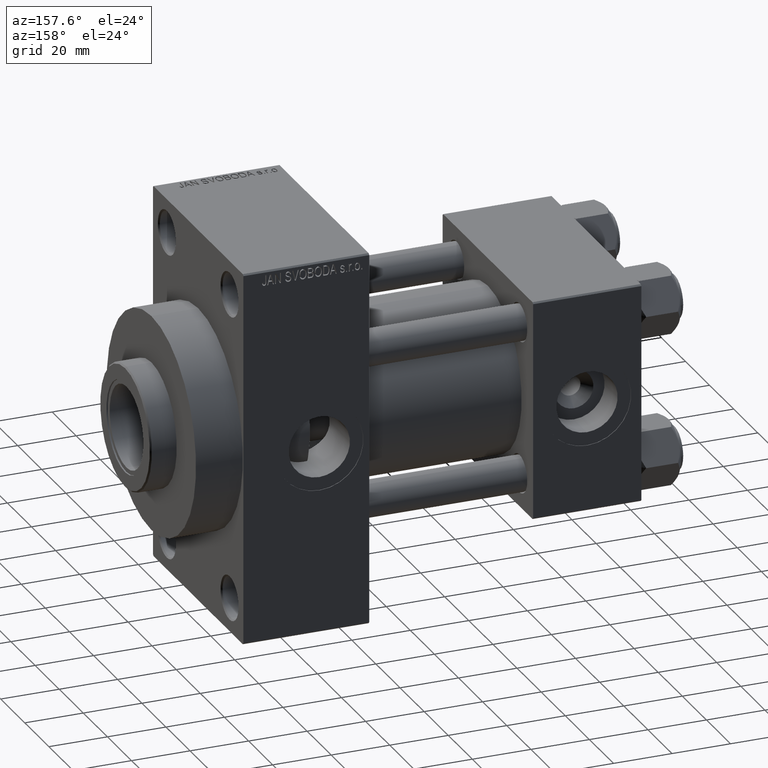
[diagram: clean part render]
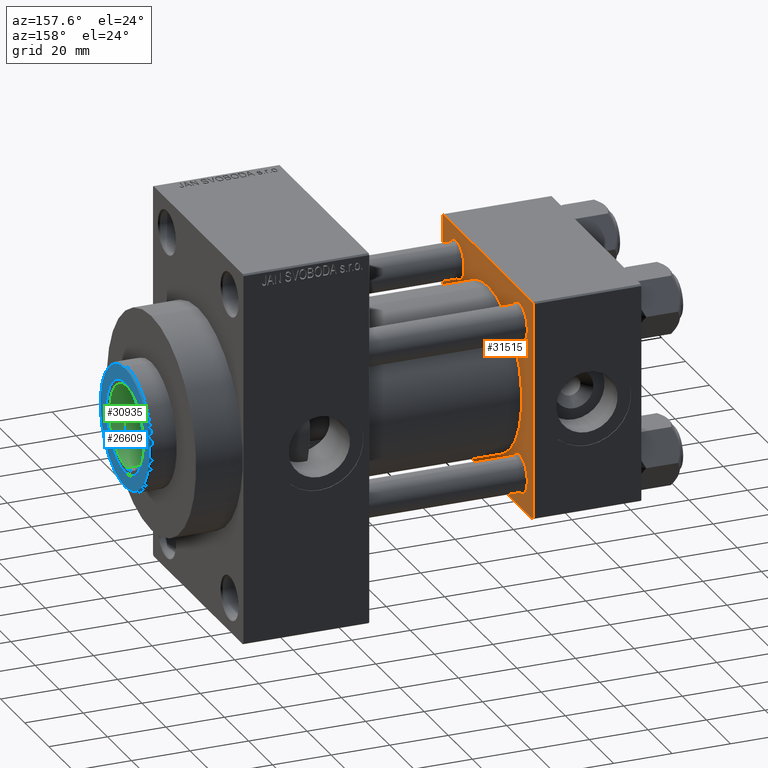
[diagram: same view with three faces highlighted in distinct colors, each labeled with its STEP entity id]
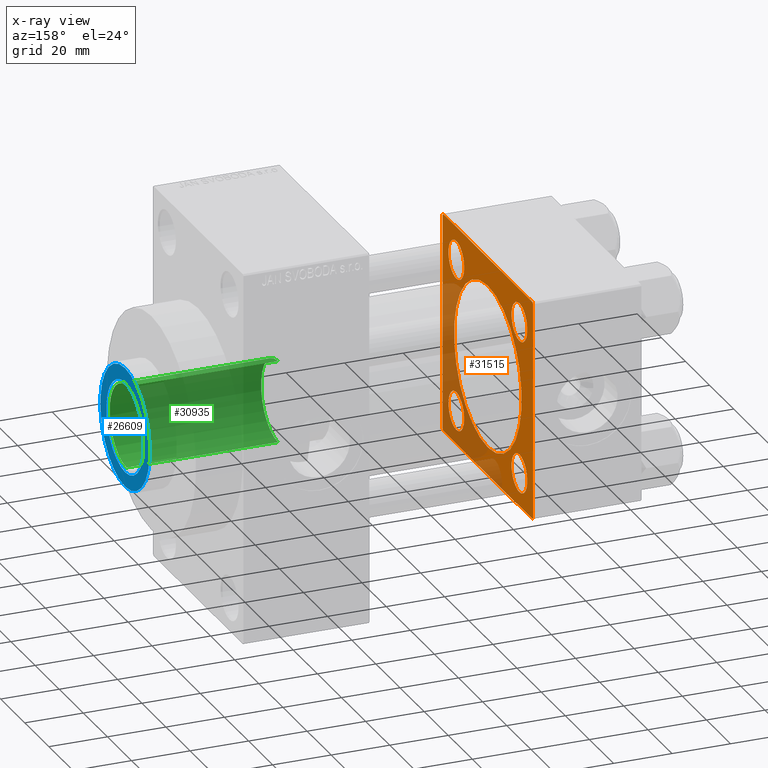
[diagram: x-ray of the same camera — body ghosted, the three highlighted faces saturated]
A machine part, auxiliary view with three faces highlighted in distinct colors.
The next image is the same camera in x-ray (body ghosted, the three faces saturated) — at least one of them is partly hidden behind the body in this view.
Their STEP definitions:

[orange] entity #31515 — the highlighted planar face has unit normal (-1, 0, 0).
#45 = VECTOR ( 'NONE', #42950, 1000.000000000000000 ) ;
#729 = CARTESIAN_POINT ( 'NONE',  ( 37.00000000000000000, 37.49999999999999289, 37.00000000000000000 ) ) ;
#925 = CARTESIAN_POINT ( 'NONE',  ( 37.00000000000000000, 36.99999999999999289, 37.50000000000000000 ) ) ;
#976 = VERTEX_POINT ( 'NONE', #10251 ) ;
#2039 = EDGE_CURVE ( 'NONE', #12675, #46666, #4774, .T. ) ;
#2148 = CARTESIAN_POINT ( 'NONE',  ( 37.00000000000000000, 26.14999999999999858, -26.15000000000000213 ) ) ;
#2221 = CARTESIAN_POINT ( 'NONE',  ( 37.00000000000000000, -26.14999999999999147, 19.65000000000000213 ) ) ;
#2370 = CIRCLE ( 'NONE', #45830, 6.500000000000002665 ) ;
#2469 = CARTESIAN_POINT ( 'NONE',  ( 37.00000000000000000, 8.269258236473784371E-16, -28.00000000000000000 ) ) ;
#2521 = EDGE_LOOP ( 'NONE', ( #40454, #30263 ) ) ;
#2956 = VERTEX_POINT ( 'NONE', #2221 ) ;
#3378 = CARTESIAN_POINT ( 'NONE',  ( 37.00000000000000000, -37.50000000000000000, -37.00000000000003553 ) ) ;
#3574 = CIRCLE ( 'NONE', #40153, 28.00000000000000000 ) ;
#4531 = ORIENTED_EDGE ( 'NONE', *, *, #44248, .T. ) ;
#4774 = LINE ( 'NONE', #15972, #14500 ) ;
#5043 = CIRCLE ( 'NONE', #11115, 28.00000000000000000 ) ;
#5260 = DIRECTION ( 'NONE',  ( -1.000000000000000000, 0.000000000000000000, -0.000000000000000000 ) ) ;
#5371 = CARTESIAN_POINT ( 'NONE',  ( 37.00000000000000000, -37.50000000000000711, 36.99999999999999289 ) ) ;
#5607 = CIRCLE ( 'NONE', #20075, 6.500000000000002665 ) ;
#6056 = LINE ( 'NONE', #8942, #11577 ) ;
#6071 = CARTESIAN_POINT ( 'NONE',  ( 37.00000000000000000, -26.14999999999999147, -19.65000000000000924 ) ) ;
#6081 = CARTESIAN_POINT ( 'NONE',  ( 37.00000000000000000, 26.14999999999999858, 26.15000000000000213 ) ) ;
#6656 = CARTESIAN_POINT ( 'NONE',  ( 37.00000000000000000, 37.49999999999999289, -37.50000000000000000 ) ) ;
#6968 = VERTEX_POINT ( 'NONE', #729 ) ;
#7112 = PLANE ( 'NONE',  #22255 ) ;
#7352 = FACE_BOUND ( 'NONE', #35170, .T. ) ;
#7362 = DIRECTION ( 'NONE',  ( 0.000000000000000000, 0.000000000000000000, 1.000000000000000000 ) ) ;
#7459 = CARTESIAN_POINT ( 'NONE',  ( 37.00000000000000000, -2.602085213965210642E-15, 28.00000000000000000 ) ) ;
#7658 = ORIENTED_EDGE ( 'NONE', *, *, #2039, .T. ) ;
#7823 = VERTEX_POINT ( 'NONE', #6071 ) ;
#7880 = DIRECTION ( 'NONE',  ( 0.000000000000000000, 0.000000000000000000, 1.000000000000000000 ) ) ;
#8034 = VECTOR ( 'NONE', #45258, 1000.000000000000114 ) ;
#8154 = CARTESIAN_POINT ( 'NONE',  ( 37.00000000000000000, 26.14999999999999858, 26.15000000000000213 ) ) ;
#8580 = CARTESIAN_POINT ( 'NONE',  ( 37.00000000000000000, 36.99999999999997868, -37.50000000000000000 ) ) ;
#8772 = ORIENTED_EDGE ( 'NONE', *, *, #34985, .T. ) ;
#8942 = CARTESIAN_POINT ( 'NONE',  ( 37.00000000000000000, 36.99999999999999289, 37.50000000000000000 ) ) ;
#8951 = DIRECTION ( 'NONE',  ( 0.000000000000000000, 0.000000000000000000, -1.000000000000000000 ) ) ;
#9254 = EDGE_CURVE ( 'NONE', #6968, #34952, #6056, .T. ) ;
#9294 = DIRECTION ( 'NONE',  ( -1.000000000000000000, 0.000000000000000000, -0.000000000000000000 ) ) ;
#9697 = CARTESIAN_POINT ( 'NONE',  ( 37.00000000000000000, -26.14999999999999147, 26.15000000000000924 ) ) ;
#9739 = EDGE_CURVE ( 'NONE', #2956, #15340, #20738, .T. ) ;
#9801 = DIRECTION ( 'NONE',  ( -1.000000000000000000, 0.000000000000000000, -0.000000000000000000 ) ) ;
#10210 = DIRECTION ( 'NONE',  ( 0.000000000000000000, -1.000000000000000000, -9.251858538542971581E-17 ) ) ;
#10251 = CARTESIAN_POINT ( 'NONE',  ( 37.00000000000000000, 37.49999999999999289, -36.99999999999998579 ) ) ;
#10515 = ORIENTED_EDGE ( 'NONE', *, *, #40465, .T. ) ;
#10680 = FACE_BOUND ( 'NONE', #44882, .T. ) ;
#11115 = AXIS2_PLACEMENT_3D ( 'NONE', #35744, #24285, #31456 ) ;
#11172 = FACE_BOUND ( 'NONE', #2521, .T. ) ;
#11577 = VECTOR ( 'NONE', #20603, 1000.000000000000114 ) ;
#12058 = CARTESIAN_POINT ( 'NONE',  ( 37.00000000000000000, -26.14999999999999147, 32.65000000000001990 ) ) ;
#12610 = CARTESIAN_POINT ( 'NONE',  ( 37.00000000000000000, -26.14999999999999147, -32.65000000000001279 ) ) ;
#12675 = VERTEX_POINT ( 'NONE', #26930 ) ;
#13733 = DIRECTION ( 'NONE',  ( 0.000000000000000000, 0.000000000000000000, 1.000000000000000000 ) ) ;
#13757 = VECTOR ( 'NONE', #27688, 1000.000000000000000 ) ;
#14500 = VECTOR ( 'NONE', #44418, 1000.000000000000000 ) ;
#14794 = EDGE_CURVE ( 'NONE', #20218, #976, #23403, .T. ) ;
#14880 = AXIS2_PLACEMENT_3D ( 'NONE', #9697, #42885, #13733 ) ;
#14910 = EDGE_CURVE ( 'NONE', #34952, #38601, #17146, .T. ) ;
#15340 = VERTEX_POINT ( 'NONE', #12058 ) ;
#15972 = CARTESIAN_POINT ( 'NONE',  ( 37.00000000000000000, -37.50000000000000711, 37.49999999999999289 ) ) ;
#16124 = VECTOR ( 'NONE', #8951, 1000.000000000000000 ) ;
#17146 = LINE ( 'NONE', #20960, #35404 ) ;
#17614 = DIRECTION ( 'NONE',  ( -1.000000000000000000, 0.000000000000000000, -0.000000000000000000 ) ) ;
#17795 = ORIENTED_EDGE ( 'NONE', *, *, #30295, .F. ) ;
#18018 = CARTESIAN_POINT ( 'NONE',  ( 37.00000000000000000, 26.14999999999999858, 32.65000000000001279 ) ) ;
#18570 = DIRECTION ( 'NONE',  ( -0.000000000000000000, 0.000000000000000000, 1.000000000000000000 ) ) ;
#18580 = DIRECTION ( 'NONE',  ( -1.000000000000000000, 0.000000000000000000, -0.000000000000000000 ) ) ;
#18712 = CIRCLE ( 'NONE', #28626, 6.500000000000002665 ) ;
#18951 = EDGE_CURVE ( 'NONE', #33760, #38652, #43784, .T. ) ;
#19252 = EDGE_LOOP ( 'NONE', ( #23692, #21361, #17795, #45551, #36699, #27557, #7658, #38956 ) ) ;
#20075 = AXIS2_PLACEMENT_3D ( 'NONE', #2148, #9294, #34162 ) ;
#20218 = VERTEX_POINT ( 'NONE', #8580 ) ;
#20603 = DIRECTION ( 'NONE',  ( 0.000000000000000000, -0.7071067811865474617, 0.7071067811865474617 ) ) ;
#20643 = ORIENTED_EDGE ( 'NONE', *, *, #26636, .T. ) ;
#20738 = CIRCLE ( 'NONE', #45912, 6.500000000000008882 ) ;
#20960 = CARTESIAN_POINT ( 'NONE',  ( 37.00000000000000000, 37.49999999999999289, 37.50000000000000000 ) ) ;
#21036 = EDGE_CURVE ( 'NONE', #43430, #31584, #27873, .T. ) ;
#21361 = ORIENTED_EDGE ( 'NONE', *, *, #14794, .T. ) ;
#21597 = AXIS2_PLACEMENT_3D ( 'NONE', #40082, #18580, #7362 ) ;
#21648 = VECTOR ( 'NONE', #41074, 1000.000000000000114 ) ;
#21920 = ORIENTED_EDGE ( 'NONE', *, *, #9739, .T. ) ;
#22255 = AXIS2_PLACEMENT_3D ( 'NONE', #29321, #17614, #18570 ) ;
#22719 = DIRECTION ( 'NONE',  ( 0.000000000000000000, 0.000000000000000000, 1.000000000000000000 ) ) ;
#22811 = VERTEX_POINT ( 'NONE', #12610 ) ;
#23403 = LINE ( 'NONE', #44663, #21648 ) ;
#23677 = DIRECTION ( 'NONE',  ( 0.000000000000000000, 0.000000000000000000, 1.000000000000000000 ) ) ;
#23692 = ORIENTED_EDGE ( 'NONE', *, *, #24986, .F. ) ;
#23929 = EDGE_CURVE ( 'NONE', #34507, #33594, #5043, .T. ) ;
#24285 = DIRECTION ( 'NONE',  ( 1.000000000000000000, -0.000000000000000000, 0.000000000000000000 ) ) ;
#24559 = LINE ( 'NONE', #6656, #45 ) ;
#24717 = ORIENTED_EDGE ( 'NONE', *, *, #23929, .F. ) ;
#24930 = EDGE_CURVE ( 'NONE', #46666, #39631, #46531, .T. ) ;
#24986 = EDGE_CURVE ( 'NONE', #20218, #39631, #24559, .T. ) ;
#25023 = CARTESIAN_POINT ( 'NONE',  ( 37.00000000000000000, 26.14999999999999858, -19.65000000000000213 ) ) ;
#25262 = FACE_OUTER_BOUND ( 'NONE', #19252, .T. ) ;
#25817 = CARTESIAN_POINT ( 'NONE',  ( 37.00000000000000000, -37.00000000000002132, -37.50000000000000711 ) ) ;
#26636 = EDGE_CURVE ( 'NONE', #22811, #7823, #2370, .T. ) ;
#26930 = CARTESIAN_POINT ( 'NONE',  ( 37.00000000000000000, -37.50000000000000711, 36.99999999999999289 ) ) ;
#27116 = CIRCLE ( 'NONE', #14880, 6.500000000000008882 ) ;
#27557 = ORIENTED_EDGE ( 'NONE', *, *, #44580, .T. ) ;
#27688 = DIRECTION ( 'NONE',  ( 0.000000000000000000, 0.7071067811865524577, -0.7071067811865426878 ) ) ;
#27873 = CIRCLE ( 'NONE', #46148, 6.500000000000002665 ) ;
#28191 = DIRECTION ( 'NONE',  ( 0.000000000000000000, 0.000000000000000000, 1.000000000000000000 ) ) ;
#28626 = AXIS2_PLACEMENT_3D ( 'NONE', #8154, #29168, #22719 ) ;
#29168 = DIRECTION ( 'NONE',  ( -1.000000000000000000, 0.000000000000000000, -0.000000000000000000 ) ) ;
#29230 = ORIENTED_EDGE ( 'NONE', *, *, #18951, .T. ) ;
#29302 = ORIENTED_EDGE ( 'NONE', *, *, #47199, .F. ) ;
#29321 = CARTESIAN_POINT ( 'NONE',  ( 37.00000000000000000, 0.000000000000000000, 0.000000000000000000 ) ) ;
#29805 = LINE ( 'NONE', #40794, #16124 ) ;
#30263 = ORIENTED_EDGE ( 'NONE', *, *, #34770, .T. ) ;
#30295 = EDGE_CURVE ( 'NONE', #6968, #976, #29805, .T. ) ;
#30854 = DIRECTION ( 'NONE',  ( -1.000000000000000000, 0.000000000000000000, -0.000000000000000000 ) ) ;
#31456 = DIRECTION ( 'NONE',  ( 0.000000000000000000, 0.000000000000000000, 1.000000000000000000 ) ) ;
#31515 = ADVANCED_FACE ( 'NONE', ( #36254, #11172, #40071, #7352, #10680, #25262 ), #7112, .F. ) ;
#31545 = DIRECTION ( 'NONE',  ( 0.000000000000000000, 0.000000000000000000, 1.000000000000000000 ) ) ;
#31584 = VERTEX_POINT ( 'NONE', #25023 ) ;
#33594 = VERTEX_POINT ( 'NONE', #2469 ) ;
#33760 = VERTEX_POINT ( 'NONE', #35419 ) ;
#34162 = DIRECTION ( 'NONE',  ( 0.000000000000000000, 0.000000000000000000, 1.000000000000000000 ) ) ;
#34507 = VERTEX_POINT ( 'NONE', #7459 ) ;
#34770 = EDGE_CURVE ( 'NONE', #31584, #43430, #5607, .T. ) ;
#34952 = VERTEX_POINT ( 'NONE', #925 ) ;
#34985 = EDGE_CURVE ( 'NONE', #7823, #22811, #36094, .T. ) ;
#35136 = CARTESIAN_POINT ( 'NONE',  ( 37.00000000000000000, -2.602085213965210642E-15, 0.000000000000000000 ) ) ;
#35170 = EDGE_LOOP ( 'NONE', ( #29230, #10515 ) ) ;
#35404 = VECTOR ( 'NONE', #10210, 1000.000000000000000 ) ;
#35419 = CARTESIAN_POINT ( 'NONE',  ( 37.00000000000000000, 26.14999999999999858, 19.64999999999999858 ) ) ;
#35680 = DIRECTION ( 'NONE',  ( 0.000000000000000000, 0.000000000000000000, 1.000000000000000000 ) ) ;
#35744 = CARTESIAN_POINT ( 'NONE',  ( 37.00000000000000000, -2.602085213965210642E-15, 0.000000000000000000 ) ) ;
#36094 = CIRCLE ( 'NONE', #21597, 6.500000000000002665 ) ;
#36182 = AXIS2_PLACEMENT_3D ( 'NONE', #6081, #46200, #35680 ) ;
#36254 = FACE_BOUND ( 'NONE', #42042, .T. ) ;
#36699 = ORIENTED_EDGE ( 'NONE', *, *, #14910, .T. ) ;
#38262 = DIRECTION ( 'NONE',  ( 1.000000000000000000, -0.000000000000000000, 0.000000000000000000 ) ) ;
#38601 = VERTEX_POINT ( 'NONE', #39049 ) ;
#38652 = VERTEX_POINT ( 'NONE', #18018 ) ;
#38944 = CARTESIAN_POINT ( 'NONE',  ( 37.00000000000000000, -26.14999999999999147, 26.15000000000000924 ) ) ;
#38956 = ORIENTED_EDGE ( 'NONE', *, *, #24930, .T. ) ;
#39049 = CARTESIAN_POINT ( 'NONE',  ( 37.00000000000000000, -37.00000000000000711, 37.49999999999999289 ) ) ;
#39604 = CARTESIAN_POINT ( 'NONE',  ( 37.00000000000000000, -37.00000000000002132, -37.50000000000000711 ) ) ;
#39631 = VERTEX_POINT ( 'NONE', #25817 ) ;
#40071 = FACE_BOUND ( 'NONE', #46653, .T. ) ;
#40082 = CARTESIAN_POINT ( 'NONE',  ( 37.00000000000000000, -26.14999999999999147, -26.15000000000000924 ) ) ;
#40153 = AXIS2_PLACEMENT_3D ( 'NONE', #35136, #38262, #31545 ) ;
#40454 = ORIENTED_EDGE ( 'NONE', *, *, #21036, .T. ) ;
#40465 = EDGE_CURVE ( 'NONE', #38652, #33760, #18712, .T. ) ;
#40794 = CARTESIAN_POINT ( 'NONE',  ( 37.00000000000000000, 37.49999999999999289, 37.50000000000000000 ) ) ;
#41074 = DIRECTION ( 'NONE',  ( -0.000000000000000000, 0.7071067811865474617, 0.7071067811865474617 ) ) ;
#42042 = EDGE_LOOP ( 'NONE', ( #20643, #8772 ) ) ;
#42885 = DIRECTION ( 'NONE',  ( -1.000000000000000000, 0.000000000000000000, -0.000000000000000000 ) ) ;
#42950 = DIRECTION ( 'NONE',  ( 0.000000000000000000, -1.000000000000000000, -9.251858538542972814E-17 ) ) ;
#43430 = VERTEX_POINT ( 'NONE', #44988 ) ;
#43784 = CIRCLE ( 'NONE', #36182, 6.500000000000002665 ) ;
#44248 = EDGE_CURVE ( 'NONE', #15340, #2956, #27116, .T. ) ;
#44418 = DIRECTION ( 'NONE',  ( 0.000000000000000000, 9.251858538542971581E-17, -1.000000000000000000 ) ) ;
#44580 = EDGE_CURVE ( 'NONE', #38601, #12675, #44786, .T. ) ;
#44663 = CARTESIAN_POINT ( 'NONE',  ( 37.00000000000000000, 37.49999999999999289, -36.99999999999998579 ) ) ;
#44786 = LINE ( 'NONE', #5371, #8034 ) ;
#44882 = EDGE_LOOP ( 'NONE', ( #24717, #29302 ) ) ;
#44906 = CARTESIAN_POINT ( 'NONE',  ( 37.00000000000000000, -26.14999999999999147, -26.15000000000000924 ) ) ;
#44988 = CARTESIAN_POINT ( 'NONE',  ( 37.00000000000000000, 26.14999999999999858, -32.65000000000000568 ) ) ;
#45258 = DIRECTION ( 'NONE',  ( -0.000000000000000000, -0.7071067811865474617, -0.7071067811865474617 ) ) ;
#45551 = ORIENTED_EDGE ( 'NONE', *, *, #9254, .T. ) ;
#45830 = AXIS2_PLACEMENT_3D ( 'NONE', #44906, #5260, #7880 ) ;
#45886 = CARTESIAN_POINT ( 'NONE',  ( 37.00000000000000000, 26.14999999999999858, -26.15000000000000213 ) ) ;
#45912 = AXIS2_PLACEMENT_3D ( 'NONE', #38944, #9801, #28191 ) ;
#46148 = AXIS2_PLACEMENT_3D ( 'NONE', #45886, #30854, #23677 ) ;
#46200 = DIRECTION ( 'NONE',  ( -1.000000000000000000, 0.000000000000000000, -0.000000000000000000 ) ) ;
#46531 = LINE ( 'NONE', #39604, #13757 ) ;
#46653 = EDGE_LOOP ( 'NONE', ( #21920, #4531 ) ) ;
#46666 = VERTEX_POINT ( 'NONE', #3378 ) ;
#47199 = EDGE_CURVE ( 'NONE', #33594, #34507, #3574, .T. ) ;

[blue] entity #26609 — the highlighted planar face has unit normal (1, -0, -0).
#822 = CIRCLE ( 'NONE', #27506, 15.50000000000000000 ) ;
#1216 = DIRECTION ( 'NONE',  ( 0.000000000000000000, 0.000000000000000000, 1.000000000000000000 ) ) ;
#1232 = CIRCLE ( 'NONE', #2711, 20.50000000000000355 ) ;
#2150 = EDGE_CURVE ( 'NONE', #29720, #19954, #16049, .T. ) ;
#2688 = EDGE_CURVE ( 'NONE', #19954, #29720, #822, .T. ) ;
#2711 = AXIS2_PLACEMENT_3D ( 'NONE', #40665, #7940, #36846 ) ;
#5782 = CARTESIAN_POINT ( 'NONE',  ( 15.50000000000000000, 0.000000000000000000, 52.25999999999999801 ) ) ;
#7940 = DIRECTION ( 'NONE',  ( 0.000000000000000000, 0.000000000000000000, 1.000000000000000000 ) ) ;
#9049 = DIRECTION ( 'NONE',  ( 0.000000000000000000, 0.000000000000000000, 1.000000000000000000 ) ) ;
#9281 = DIRECTION ( 'NONE',  ( 1.000000000000000000, 0.000000000000000000, 0.000000000000000000 ) ) ;
#11392 = EDGE_LOOP ( 'NONE', ( #38376, #25819 ) ) ;
#11530 = AXIS2_PLACEMENT_3D ( 'NONE', #37027, #1216, #30802 ) ;
#12315 = DIRECTION ( 'NONE',  ( 1.000000000000000000, 0.000000000000000000, 0.000000000000000000 ) ) ;
#16015 = CARTESIAN_POINT ( 'NONE',  ( 20.50000000000000355, 2.541142108230758269E-15, 52.25999999999999801 ) ) ;
#16049 = CIRCLE ( 'NONE', #46551, 15.50000000000000000 ) ;
#16938 = EDGE_CURVE ( 'NONE', #36223, #40588, #32277, .T. ) ;
#17374 = CARTESIAN_POINT ( 'NONE',  ( 0.000000000000000000, 0.000000000000000000, 52.25999999999999801 ) ) ;
#19954 = VERTEX_POINT ( 'NONE', #41658 ) ;
#21820 = EDGE_CURVE ( 'NONE', #40588, #36223, #1232, .T. ) ;
#25819 = ORIENTED_EDGE ( 'NONE', *, *, #2688, .F. ) ;
#26609 = ADVANCED_FACE ( 'NONE', ( #37264, #37985 ), #29858, .T. ) ;
#27506 = AXIS2_PLACEMENT_3D ( 'NONE', #30470, #45044, #12315 ) ;
#28946 = ORIENTED_EDGE ( 'NONE', *, *, #21820, .T. ) ;
#29499 = CARTESIAN_POINT ( 'NONE',  ( 0.000000000000000000, 0.000000000000000000, 52.25999999999999801 ) ) ;
#29618 = ORIENTED_EDGE ( 'NONE', *, *, #16938, .T. ) ;
#29720 = VERTEX_POINT ( 'NONE', #5782 ) ;
#29858 = PLANE ( 'NONE',  #11530 ) ;
#30198 = EDGE_LOOP ( 'NONE', ( #29618, #28946 ) ) ;
#30470 = CARTESIAN_POINT ( 'NONE',  ( 0.000000000000000000, 0.000000000000000000, 52.25999999999999801 ) ) ;
#30802 = DIRECTION ( 'NONE',  ( 1.000000000000000000, 0.000000000000000000, -0.000000000000000000 ) ) ;
#32277 = CIRCLE ( 'NONE', #35447, 20.50000000000000355 ) ;
#32819 = DIRECTION ( 'NONE',  ( 1.000000000000000000, 0.000000000000000000, 0.000000000000000000 ) ) ;
#35447 = AXIS2_PLACEMENT_3D ( 'NONE', #29499, #43583, #32819 ) ;
#36223 = VERTEX_POINT ( 'NONE', #45104 ) ;
#36846 = DIRECTION ( 'NONE',  ( 1.000000000000000000, 0.000000000000000000, 0.000000000000000000 ) ) ;
#37027 = CARTESIAN_POINT ( 'NONE',  ( 0.000000000000000000, 0.000000000000000000, 52.25999999999999801 ) ) ;
#37264 = FACE_BOUND ( 'NONE', #11392, .T. ) ;
#37985 = FACE_OUTER_BOUND ( 'NONE', #30198, .T. ) ;
#38376 = ORIENTED_EDGE ( 'NONE', *, *, #2150, .F. ) ;
#40588 = VERTEX_POINT ( 'NONE', #16015 ) ;
#40665 = CARTESIAN_POINT ( 'NONE',  ( 0.000000000000000000, 0.000000000000000000, 52.25999999999999801 ) ) ;
#41658 = CARTESIAN_POINT ( 'NONE',  ( -15.50000000000000000, 1.898202538678397557E-15, 52.25999999999999801 ) ) ;
#43583 = DIRECTION ( 'NONE',  ( 0.000000000000000000, 0.000000000000000000, 1.000000000000000000 ) ) ;
#45044 = DIRECTION ( 'NONE',  ( 0.000000000000000000, 0.000000000000000000, 1.000000000000000000 ) ) ;
#45104 = CARTESIAN_POINT ( 'NONE',  ( -20.50000000000000355, 0.000000000000000000, 52.25999999999999801 ) ) ;
#46551 = AXIS2_PLACEMENT_3D ( 'NONE', #17374, #9049, #9281 ) ;

[green] entity #30935 — the highlighted cylindrical surface (partial cylindrical patch) has radius 14 mm, axis along (1, -0, -0).
#642 = DIRECTION ( 'NONE',  ( -0.000000000000000000, -0.000000000000000000, -1.000000000000000000 ) ) ;
#749 = EDGE_CURVE ( 'NONE', #2628, #2819, #32512, .T. ) ;
#1088 = VERTEX_POINT ( 'NONE', #8577 ) ;
#2151 = EDGE_CURVE ( 'NONE', #8179, #2819, #37442, .T. ) ;
#2617 = EDGE_CURVE ( 'NONE', #1088, #2628, #8417, .T. ) ;
#2628 = VERTEX_POINT ( 'NONE', #36930 ) ;
#2819 = VERTEX_POINT ( 'NONE', #44033 ) ;
#5838 = ORIENTED_EDGE ( 'NONE', *, *, #44575, .F. ) ;
#6066 = VECTOR ( 'NONE', #43499, 1000.000000000000000 ) ;
#8179 = VERTEX_POINT ( 'NONE', #45756 ) ;
#8238 = LINE ( 'NONE', #37868, #31663 ) ;
#8417 = CIRCLE ( 'NONE', #21385, 14.00000000000000178 ) ;
#8577 = CARTESIAN_POINT ( 'NONE',  ( -14.00000000000000178, 1.714505518806294835E-15, 0.000000000000000000 ) ) ;
#9969 = DIRECTION ( 'NONE',  ( -0.000000000000000000, -0.000000000000000000, -1.000000000000000000 ) ) ;
#10320 = DIRECTION ( 'NONE',  ( 1.000000000000000000, 0.000000000000000000, 0.000000000000000000 ) ) ;
#13891 = FACE_OUTER_BOUND ( 'NONE', #21301, .T. ) ;
#14136 = DIRECTION ( 'NONE',  ( -0.000000000000000000, -0.000000000000000000, 1.000000000000000000 ) ) ;
#17950 = CARTESIAN_POINT ( 'NONE',  ( 14.00000000000000178, 0.000000000000000000, -39.59797974644666141 ) ) ;
#18533 = DIRECTION ( 'NONE',  ( 1.000000000000000000, 0.000000000000000000, 0.000000000000000000 ) ) ;
#21301 = EDGE_LOOP ( 'NONE', ( #5838, #39016, #40879, #33426 ) ) ;
#21385 = AXIS2_PLACEMENT_3D ( 'NONE', #43613, #642, #18533 ) ;
#24413 = AXIS2_PLACEMENT_3D ( 'NONE', #45595, #9969, #45823 ) ;
#28473 = CYLINDRICAL_SURFACE ( 'NONE', #42803, 14.00000000000000178 ) ;
#30935 = ADVANCED_FACE ( 'NONE', ( #13891 ), #28473, .F. ) ;
#31663 = VECTOR ( 'NONE', #41679, 1000.000000000000000 ) ;
#32512 = LINE ( 'NONE', #17950, #6066 ) ;
#33426 = ORIENTED_EDGE ( 'NONE', *, *, #2151, .F. ) ;
#36930 = CARTESIAN_POINT ( 'NONE',  ( 14.00000000000000178, 0.000000000000000000, 0.000000000000000000 ) ) ;
#37442 = CIRCLE ( 'NONE', #24413, 14.00000000000000178 ) ;
#37868 = CARTESIAN_POINT ( 'NONE',  ( -14.00000000000000178, 1.714505518806294835E-15, -39.59797974644666141 ) ) ;
#39016 = ORIENTED_EDGE ( 'NONE', *, *, #2617, .T. ) ;
#40879 = ORIENTED_EDGE ( 'NONE', *, *, #749, .T. ) ;
#41679 = DIRECTION ( 'NONE',  ( -0.000000000000000000, -0.000000000000000000, 1.000000000000000000 ) ) ;
#42803 = AXIS2_PLACEMENT_3D ( 'NONE', #43046, #14136, #10320 ) ;
#43046 = CARTESIAN_POINT ( 'NONE',  ( 0.000000000000000000, 0.000000000000000000, -39.59797974644666141 ) ) ;
#43499 = DIRECTION ( 'NONE',  ( -0.000000000000000000, -0.000000000000000000, 1.000000000000000000 ) ) ;
#43613 = CARTESIAN_POINT ( 'NONE',  ( 0.000000000000000000, 0.000000000000000000, 0.000000000000000000 ) ) ;
#44033 = CARTESIAN_POINT ( 'NONE',  ( 14.00000000000000178, 0.000000000000000000, 51.75999999999999801 ) ) ;
#44575 = EDGE_CURVE ( 'NONE', #1088, #8179, #8238, .T. ) ;
#45595 = CARTESIAN_POINT ( 'NONE',  ( 0.000000000000000000, 0.000000000000000000, 51.75999999999999801 ) ) ;
#45756 = CARTESIAN_POINT ( 'NONE',  ( -14.00000000000000178, 1.714505518806294835E-15, 51.75999999999999801 ) ) ;
#45823 = DIRECTION ( 'NONE',  ( 1.000000000000000000, 0.000000000000000000, 0.000000000000000000 ) ) ;